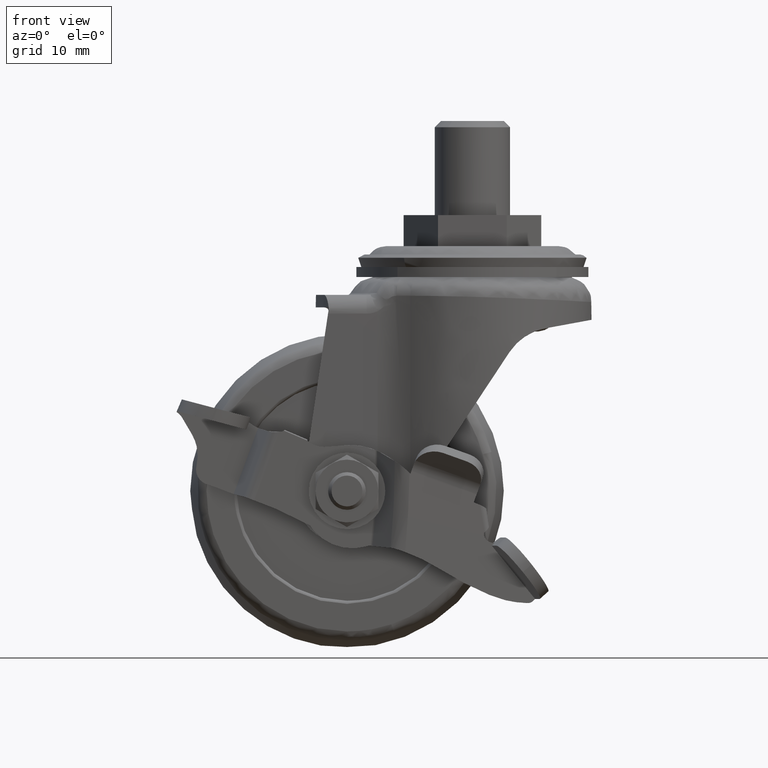
[diagram: clean part render]
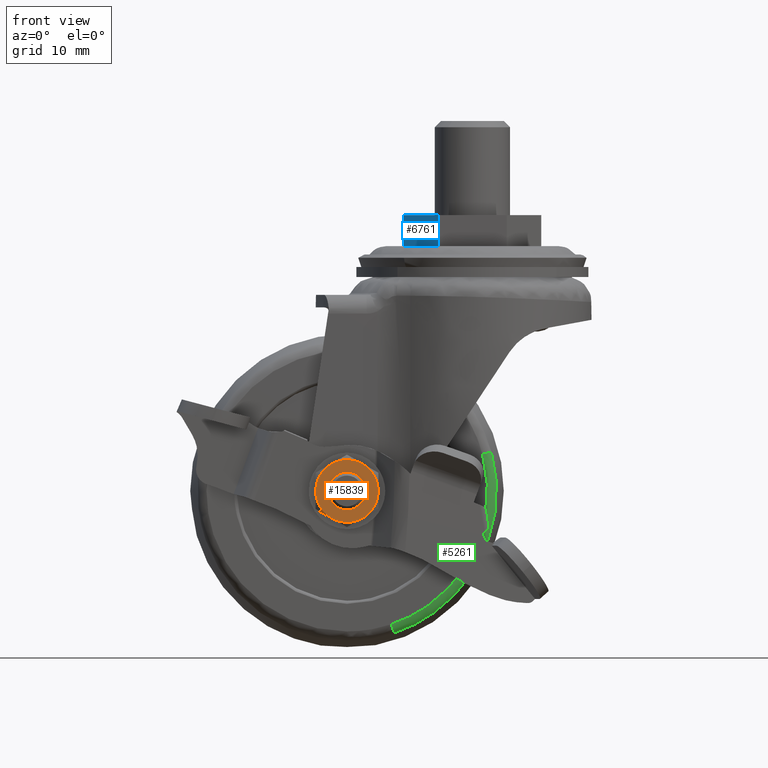
[diagram: same view with three faces highlighted in distinct colors, each labeled with its STEP entity id]
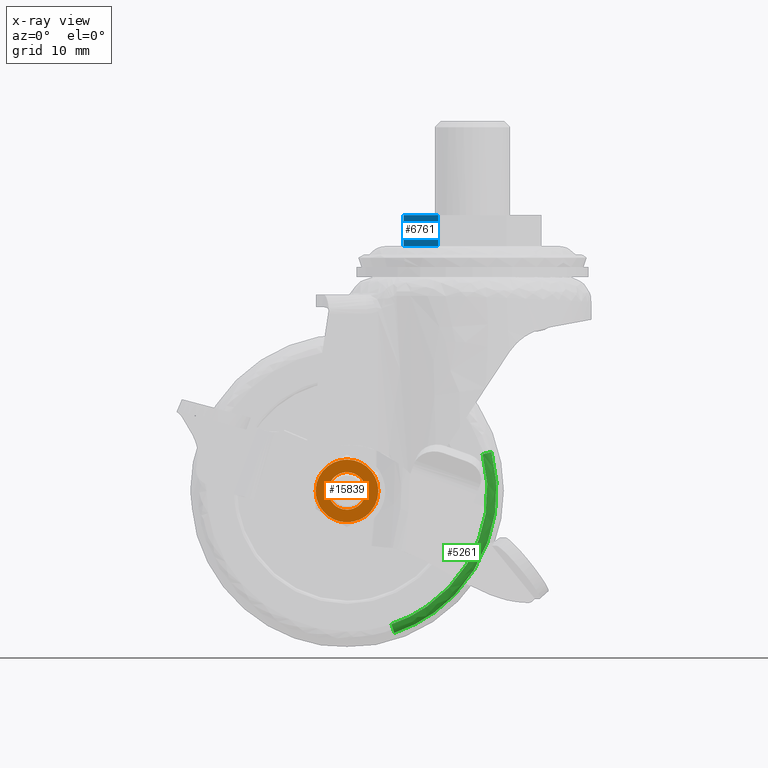
[diagram: x-ray of the same camera — body ghosted, the three highlighted faces saturated]
A machine part, front view with three faces highlighted in distinct colors.
The next image is the same camera in x-ray (body ghosted, the three faces saturated) — at least one of them is partly hidden behind the body in this view.
Their STEP definitions:

[orange] entity #15839 — the highlighted face is a freeform B-spline surface patch.
#14986=CARTESIAN_POINT('',(-22.065178566340482,-22.239999999999998,-41.257308794949999));
#14987=VERTEX_POINT('',#14986);
#14993=CARTESIAN_POINT('',(-20.000114999999901,-22.239999999999998,-42.081186000000031));
#14994=VERTEX_POINT('',#14993);
#14995=CARTESIAN_POINT('',(-20.000114999999901,-22.239999999999998,-42.081186000000031));
#14996=CARTESIAN_POINT('',(-20.189919915054379,-22.239999999999998,-42.081202592994487));
#14997=CARTESIAN_POINT('',(-20.581372305999270,-22.240000000000009,-42.043908622658641));
#14998=CARTESIAN_POINT('',(-21.312519985789820,-22.239999999999970,-41.825347838324660));
#14999=CARTESIAN_POINT('',(-21.798598070608591,-22.239999999999991,-41.510717851837882));
#15000=CARTESIAN_POINT('',(-22.065178566340482,-22.239999999999998,-41.257308794949999));
#15001=B_SPLINE_CURVE_WITH_KNOTS('',3,(#14995,#14996,#14997,#14998,#14999,#15000),.UNSPECIFIED.,.F.,.U.,(4,1,1,4),(0.000000028908446,0.569417021956008,1.174403919337166,2.277668001101973),.UNSPECIFIED.);
#15002=EDGE_CURVE('',#14994,#14987,#15001,.T.);
#15004=CARTESIAN_POINT('',(-17.000115000000140,-22.239999999999998,-39.081187367388473));
#15005=VERTEX_POINT('',#15004);
#15006=CARTESIAN_POINT('',(-17.000115000000140,-22.239999999999998,-39.081187367388473));
#15007=CARTESIAN_POINT('',(-17.000031883774948,-22.239999999999991,-39.338904672299371));
#15008=CARTESIAN_POINT('',(-17.051049593484411,-22.240000000000041,-39.731557771506083));
#15009=CARTESIAN_POINT('',(-17.251463817940870,-22.239999999999920,-40.325981300611232));
#15010=CARTESIAN_POINT('',(-17.558608783160061,-22.240000000000141,-40.876179332247027));
#15011=CARTESIAN_POINT('',(-18.041851260453360,-22.239999999999981,-41.389942531911288));
#15012=CARTESIAN_POINT('',(-18.639321014113928,-22.239999999999981,-41.783902770342578));
#15013=CARTESIAN_POINT('',(-19.288360477812290,-22.240000000000158,-42.025130193503209));
#15014=CARTESIAN_POINT('',(-19.766950590566051,-22.239999999999920,-42.081226699634612));
#15015=CARTESIAN_POINT('',(-20.000114999999901,-22.239999999999998,-42.081186000000031));
#15016=B_SPLINE_CURVE_WITH_KNOTS('',3,(#15006,#15007,#15008,#15009,#15010,#15011,#15012,#15013,#15014,#15015),.UNSPECIFIED.,.F.,.U.,(4,1,1,1,1,1,1,4),(0.000000119885740,0.773127861633734,1.178104634355915,1.877607584180254,2.650709578517064,3.276595385803298,4.012927290368290,4.712417777949388),.UNSPECIFIED.);
#15017=EDGE_CURVE('',#15005,#14994,#15016,.T.);
#15019=CARTESIAN_POINT('',(-20.000114999999901,-22.239999999999998,-36.081185999999882));
#15020=VERTEX_POINT('',#15019);
#15021=CARTESIAN_POINT('',(-20.000114999999901,-22.239999999999998,-36.081185999999882));
#15022=CARTESIAN_POINT('',(-19.779225774279318,-22.240000000000020,-36.081151482247790));
#15023=CARTESIAN_POINT('',(-19.337460210065711,-22.239999999999970,-36.130200893545862));
#15024=CARTESIAN_POINT('',(-18.636864142214112,-22.239999999999981,-36.371083569741486));
#15025=CARTESIAN_POINT('',(-18.079907219168771,-22.240000000000101,-36.743260321783097));
#15026=CARTESIAN_POINT('',(-17.630262519520681,-22.239999999999959,-37.215675138302529));
#15027=CARTESIAN_POINT('',(-17.297392431600439,-22.240000000000119,-37.720387269219131));
#15028=CARTESIAN_POINT('',(-17.056171838044069,-22.239999999999618,-38.369433532534408));
#15029=CARTESIAN_POINT('',(-17.000073957151209,-22.240000000000450,-38.848022738287753));
#15030=CARTESIAN_POINT('',(-17.000115000000140,-22.239999999999998,-39.081187367388473));
#15031=B_SPLINE_CURVE_WITH_KNOTS('',3,(#15021,#15022,#15023,#15024,#15025,#15026,#15027,#15028,#15029,#15030),.UNSPECIFIED.,.F.,.U.,(4,1,1,1,1,1,1,4),(0.000000119435660,0.662667179194615,1.325368415308418,2.208966484818668,2.650710446975306,3.276596458360181,4.012928603772594,4.712419319324531),.UNSPECIFIED.);
#15032=EDGE_CURVE('',#15020,#15005,#15031,.T.);
#15034=CARTESIAN_POINT('',(-22.290782165739820,-22.239999999999998,-37.143959642958812));
#15035=VERTEX_POINT('',#15034);
#15036=CARTESIAN_POINT('',(-22.290782165739820,-22.239999999999998,-37.143959642958812));
#15037=CARTESIAN_POINT('',(-22.141789975624430,-22.239999999999998,-36.967721505112053));
#15038=CARTESIAN_POINT('',(-21.802874971717060,-22.240000000000020,-36.649889595605700));
#15039=CARTESIAN_POINT('',(-21.258180096413611,-22.240000000000009,-36.336105265697888));
#15040=CARTESIAN_POINT('',(-20.651692560695960,-22.239999999999949,-36.131236733077230));
#15041=CARTESIAN_POINT('',(-20.244472642900650,-22.240000000000130,-36.081122939746642));
#15042=CARTESIAN_POINT('',(-20.000114999999901,-22.239999999999998,-36.081185999999882));
#15043=B_SPLINE_CURVE_WITH_KNOTS('',3,(#15036,#15037,#15038,#15039,#15040,#15041,#15042),.UNSPECIFIED.,.F.,.U.,(4,1,1,1,4),(0.000000039433935,0.692332325804051,1.384651935936745,1.873365879324359,2.606424994682187),.UNSPECIFIED.);
#15044=EDGE_CURVE('',#15035,#15020,#15043,.T.);
#15070=CARTESIAN_POINT('',(-23.000114999999671,-22.239999999999998,-39.081184632611389));
#15071=VERTEX_POINT('',#15070);
#15072=CARTESIAN_POINT('',(-23.000114999999671,-22.239999999999998,-39.081184632611389));
#15073=CARTESIAN_POINT('',(-23.000172115502941,-22.240000000000009,-38.839867651535542));
#15074=CARTESIAN_POINT('',(-22.949539592238349,-22.239999999999991,-38.423089942774567));
#15075=CARTESIAN_POINT('',(-22.721827704894789,-22.239999999999998,-37.756183608304269));
#15076=CARTESIAN_POINT('',(-22.475035120766950,-22.240000000000020,-37.361654301026348));
#15077=CARTESIAN_POINT('',(-22.290782165739820,-22.239999999999998,-37.143959642958812));
#15078=B_SPLINE_CURVE_WITH_KNOTS('',3,(#15072,#15073,#15074,#15075,#15076,#15077),.UNSPECIFIED.,.F.,.U.,(4,1,1,4),(0.000000018837691,0.723952191754388,1.250445441148272,2.106025115664856),.UNSPECIFIED.);
#15079=EDGE_CURVE('',#15071,#15035,#15078,.T.);
#15081=CARTESIAN_POINT('',(-22.065178566340482,-22.239999999999998,-41.257308794949999));
#15082=CARTESIAN_POINT('',(-22.304488431396241,-22.239999999999991,-41.030477193878241));
#15083=CARTESIAN_POINT('',(-22.652770429045919,-22.239999999999970,-40.568682997409049));
#15084=CARTESIAN_POINT('',(-22.941766076873900,-22.240000000000030,-39.803973342907149));
#15085=CARTESIAN_POINT('',(-23.000158285708839,-22.239999999999981,-39.322125519106550));
#15086=CARTESIAN_POINT('',(-23.000114999999671,-22.239999999999998,-39.081184632611389));
#15087=B_SPLINE_CURVE_WITH_KNOTS('',3,(#15081,#15082,#15083,#15084,#15085,#15086),.UNSPECIFIED.,.F.,.U.,(4,1,1,4),(0.000000031737788,0.989129454947901,1.711931885952800,2.434751745338046),.UNSPECIFIED.);
#15088=EDGE_CURVE('',#14987,#15071,#15087,.T.);
#15269=CARTESIAN_POINT('',(-22.063342728352051,-22.239999999999998,-43.636193309649450));
#15270=VERTEX_POINT('',#15269);
#15278=CARTESIAN_POINT('',(-22.913556348010800,-22.239999999999998,-43.145279965658503));
#15279=VERTEX_POINT('',#15278);
#15280=CARTESIAN_POINT('',(-22.913556348010800,-22.239999999999998,-43.145279965658503));
#15281=CARTESIAN_POINT('',(-22.063342728352051,-22.239999999999998,-43.636193309649450));
#15282=QUASI_UNIFORM_CURVE('',1,(#15280,#15281),.UNSPECIFIED.,.F.,.U.);
#15283=EDGE_CURVE('',#15279,#15270,#15282,.T.);
#15301=CARTESIAN_POINT('',(-25.000114999999901,-22.239999999999998,-39.151898445875503));
#15302=VERTEX_POINT('',#15301);
#15310=CARTESIAN_POINT('',(-25.000114999999901,-22.239999999999998,-39.010473554124353));
#15311=VERTEX_POINT('',#15310);
#15312=CARTESIAN_POINT('',(-25.000114999999901,-22.239999999999998,-39.010473554124353));
#15313=CARTESIAN_POINT('',(-25.000114999999901,-22.239999999999998,-39.151898445875503));
#15314=QUASI_UNIFORM_CURVE('',1,(#15312,#15313),.UNSPECIFIED.,.F.,.U.);
#15315=EDGE_CURVE('',#15311,#15302,#15314,.T.);
#15397=CARTESIAN_POINT('',(-17.086673651988551,-22.239999999999998,-43.145279965658162));
#15398=VERTEX_POINT('',#15397);
#15406=CARTESIAN_POINT('',(-17.936887271648100,-22.239999999999998,-43.636193309649599));
#15407=VERTEX_POINT('',#15406);
#15408=CARTESIAN_POINT('',(-17.936887271648100,-22.239999999999998,-43.636193309649599));
#15409=CARTESIAN_POINT('',(-17.086673651988551,-22.239999999999998,-43.145279965658162));
#15410=QUASI_UNIFORM_CURVE('',1,(#15408,#15409),.UNSPECIFIED.,.F.,.U.);
#15411=EDGE_CURVE('',#15407,#15398,#15410,.T.);
#15461=CARTESIAN_POINT('',(-15.000115000000100,-22.239999999999998,-39.010473554110249));
#15462=VERTEX_POINT('',#15461);
#15470=CARTESIAN_POINT('',(-15.000115000000100,-22.239999999999998,-39.151898445889600));
#15471=VERTEX_POINT('',#15470);
#15472=CARTESIAN_POINT('',(-15.000115000000100,-22.239999999999998,-39.151898445889600));
#15473=CARTESIAN_POINT('',(-15.000115000000100,-22.239999999999998,-39.010473554110249));
#15474=QUASI_UNIFORM_CURVE('',1,(#15472,#15473),.UNSPECIFIED.,.F.,.U.);
#15475=EDGE_CURVE('',#15471,#15462,#15474,.T.);
#15759=CARTESIAN_POINT('',(-25.499614381653849,-22.239999999999998,-33.581134768342082));
#15760=CARTESIAN_POINT('',(-25.499614381653849,-22.239999999999998,-44.581234012685272));
#15761=CARTESIAN_POINT('',(-14.500615528939180,-22.239999999999998,-33.581134768342082));
#15762=CARTESIAN_POINT('',(-14.500615528939180,-22.239999999999998,-44.581234012685272));
#15763=B_SPLINE_SURFACE_WITH_KNOTS('',1,1,((#15759,#15761),(#15760,#15762)),.UNSPECIFIED.,.F.,.F.,.U.,(2,2),(2,2),(0.0,11.000099244343190),(0.0,10.998998852714671),.UNSPECIFIED.);
#15764=CARTESIAN_POINT('',(-22.913556348010800,-22.239999999999998,-43.145279965658503));
#15765=CARTESIAN_POINT('',(-23.329203512168650,-22.239999999999998,-42.847604164880821));
#15766=CARTESIAN_POINT('',(-23.874251343970680,-22.240000000000041,-42.312942825518952));
#15767=CARTESIAN_POINT('',(-24.439749527978531,-22.239999999999931,-41.428727569046458));
#15768=CARTESIAN_POINT('',(-24.857249616191961,-22.240000000000119,-40.464421113742453));
#15769=CARTESIAN_POINT('',(-24.993127609024580,-22.239999999999942,-39.663095806685313));
#15770=CARTESIAN_POINT('',(-25.000114999999901,-22.239999999999998,-39.151898445875503));
#15771=B_SPLINE_CURVE_WITH_KNOTS('',3,(#15764,#15765,#15766,#15767,#15768,#15769,#15770),.UNSPECIFIED.,.F.,.U.,(4,1,1,1,4),(0.000000034316132,1.533650522302746,2.263971359528568,3.140327612041242,4.673978100027673),.UNSPECIFIED.);
#15772=EDGE_CURVE('',#15279,#15302,#15771,.T.);
#15773=ORIENTED_EDGE('',*,*,#15772,.F.);
#15774=ORIENTED_EDGE('',*,*,#15283,.T.);
#15775=CARTESIAN_POINT('',(-17.936887271648100,-22.239999999999998,-43.636193309649599));
#15776=CARTESIAN_POINT('',(-18.340442951217970,-22.239999999999981,-43.819147223268509));
#15777=CARTESIAN_POINT('',(-19.089548302429421,-22.240000000000080,-44.044394843198383));
#15778=CARTESIAN_POINT('',(-20.134092190227211,-22.239999999999881,-44.106920676818063));
#15779=CARTESIAN_POINT('',(-21.104979476315489,-22.240000000000251,-43.990206481187649));
#15780=CARTESIAN_POINT('',(-21.720306988153979,-22.239999999999771,-43.791663329406241));
#15781=CARTESIAN_POINT('',(-22.063342728352051,-22.239999999999998,-43.636193309649450));
#15782=B_SPLINE_CURVE_WITH_KNOTS('',3,(#15775,#15776,#15777,#15778,#15779,#15780,#15781),.UNSPECIFIED.,.F.,.U.,(4,1,1,1,4),(0.000000030120137,1.329241184308419,2.326157518667383,3.123713749518815,4.253568707115332),.UNSPECIFIED.);
#15783=EDGE_CURVE('',#15407,#15270,#15782,.T.);
#15784=ORIENTED_EDGE('',*,*,#15783,.F.);
#15785=ORIENTED_EDGE('',*,*,#15411,.T.);
#15786=CARTESIAN_POINT('',(-15.000115000000100,-22.239999999999998,-39.151898445889600));
#15787=CARTESIAN_POINT('',(-15.003894260603170,-22.239999999999998,-39.419647237791708));
#15788=CARTESIAN_POINT('',(-15.063756364413591,-22.239999999999991,-40.051805549324449));
#15789=CARTESIAN_POINT('',(-15.324795818345869,-22.239999999999998,-40.945041022109180));
#15790=CARTESIAN_POINT('',(-15.777488994273860,-22.240000000000009,-41.811395813422919));
#15791=CARTESIAN_POINT('',(-16.350195524291269,-22.239999999999981,-42.543149008347591));
#15792=CARTESIAN_POINT('',(-16.829451521057759,-22.240000000000052,-42.960924455735103));
#15793=CARTESIAN_POINT('',(-17.086673651988551,-22.239999999999998,-43.145279965658162));
#15794=B_SPLINE_CURVE_WITH_KNOTS('',3,(#15786,#15787,#15788,#15789,#15790,#15791,#15792,#15793),.UNSPECIFIED.,.F.,.U.,(4,1,1,1,1,4),(0.000000034315781,0.803338579182248,1.898809277543616,2.775168856784399,3.724580784479146,4.673978100013005),.UNSPECIFIED.);
#15795=EDGE_CURVE('',#15471,#15398,#15794,.T.);
#15796=ORIENTED_EDGE('',*,*,#15795,.F.);
#15797=ORIENTED_EDGE('',*,*,#15475,.T.);
#15798=CARTESIAN_POINT('',(-20.000113939331481,-22.239999999999998,-34.080685999999901));
#15799=VERTEX_POINT('',#15798);
#15800=CARTESIAN_POINT('',(-20.000113939331481,-22.239999999999998,-34.080685999999901));
#15801=CARTESIAN_POINT('',(-19.533860319090351,-22.239999999999888,-34.080499262849862));
#15802=CARTESIAN_POINT('',(-18.844755822928949,-22.240000000000190,-34.177805871357258));
#15803=CARTESIAN_POINT('',(-17.946668844177520,-22.239999999999860,-34.502229981286533));
#15804=CARTESIAN_POINT('',(-17.265797379722081,-22.240000000000080,-34.867596570432077));
#15805=CARTESIAN_POINT('',(-16.556810399425991,-22.240000000000169,-35.414086015138061));
#15806=CARTESIAN_POINT('',(-15.975331462911679,-22.239999999999661,-36.069664429954081));
#15807=CARTESIAN_POINT('',(-15.508480865481870,-22.240000000000698,-36.832448385191462));
#15808=CARTESIAN_POINT('',(-15.126146067042381,-22.239999999999689,-37.775689773025917));
#15809=CARTESIAN_POINT('',(-15.006518832324220,-22.239999999999998,-38.544267021258477));
#15810=CARTESIAN_POINT('',(-15.000115000000100,-22.239999999999998,-39.010473554110249));
#15811=B_SPLINE_CURVE_WITH_KNOTS('',3,(#15800,#15801,#15802,#15803,#15804,#15805,#15806,#15807,#15808,#15809,#15810),.UNSPECIFIED.,.F.,.U.,(4,1,1,1,1,1,1,1,4),(0.000000105189140,1.398694323978122,2.067653195316586,2.858242893422033,3.709618495990883,4.743412652260355,5.473186951721814,6.385405457154374,7.784099134834699),.UNSPECIFIED.);
#15812=EDGE_CURVE('',#15799,#15462,#15811,.T.);
#15813=ORIENTED_EDGE('',*,*,#15812,.F.);
#15814=CARTESIAN_POINT('',(-25.000114999999901,-22.239999999999998,-39.010473554124353));
#15815=CARTESIAN_POINT('',(-24.995290076700499,-22.239999999999998,-38.665903216616819));
#15816=CARTESIAN_POINT('',(-24.918762038168861,-22.239999999999998,-38.018267879886892));
#15817=CARTESIAN_POINT('',(-24.656243287553590,-22.240000000000052,-37.204642742718683));
#15818=CARTESIAN_POINT('',(-24.301674273845212,-22.239999999999888,-36.496394268420786));
#15819=CARTESIAN_POINT('',(-23.765646304207369,-22.240000000000069,-35.729251663892249));
#15820=CARTESIAN_POINT('',(-22.921262088093950,-22.240000000000119,-34.955385021976547));
#15821=CARTESIAN_POINT('',(-21.874181863028820,-22.239999999999640,-34.401726332430847));
#15822=CARTESIAN_POINT('',(-20.892023931439219,-22.240000000000190,-34.132580542469128));
#15823=CARTESIAN_POINT('',(-20.283899903844819,-22.239999999999959,-34.080669003285301));
#15824=CARTESIAN_POINT('',(-20.000113939331481,-22.239999999999998,-34.080685999999901));
#15825=B_SPLINE_CURVE_WITH_KNOTS('',3,(#15814,#15815,#15816,#15817,#15818,#15819,#15820,#15821,#15822,#15823,#15824),.UNSPECIFIED.,.F.,.U.,(4,1,1,1,1,1,1,1,4),(0.000000105190887,1.033807798334809,1.946025639525133,2.554163118385219,3.405573954972911,4.743413944964471,5.959703812395704,6.932737989280130,7.784101256224829),.UNSPECIFIED.);
#15826=EDGE_CURVE('',#15311,#15799,#15825,.T.);
#15827=ORIENTED_EDGE('',*,*,#15826,.F.);
#15828=ORIENTED_EDGE('',*,*,#15315,.T.);
#15829=EDGE_LOOP('',(#15773,#15774,#15784,#15785,#15796,#15797,#15813,#15827,#15828));
#15830=FACE_OUTER_BOUND('',#15829,.T.);
#15831=ORIENTED_EDGE('',*,*,#15032,.T.);
#15832=ORIENTED_EDGE('',*,*,#15017,.T.);
#15833=ORIENTED_EDGE('',*,*,#15002,.T.);
#15834=ORIENTED_EDGE('',*,*,#15088,.T.);
#15835=ORIENTED_EDGE('',*,*,#15079,.T.);
#15836=ORIENTED_EDGE('',*,*,#15044,.T.);
#15837=EDGE_LOOP('',(#15831,#15832,#15833,#15834,#15835,#15836));
#15838=FACE_BOUND('',#15837,.T.);
#15839=ADVANCED_FACE('',(#15830,#15838),#15763,.T.);

[blue] entity #6761 — the highlighted face is a freeform B-spline surface patch.
#6726=CARTESIAN_POINT('',(-5.210421800542930,-9.974525070766475,-0.247058017392521));
#6727=CARTESIAN_POINT('',(-11.243184297533251,0.474525240639604,-0.247058017392521));
#6728=CARTESIAN_POINT('',(-5.210421800542930,-9.974525070766475,5.193164796284398));
#6729=CARTESIAN_POINT('',(-11.243184297533251,0.474525240639604,5.193164796284398));
#6730=B_SPLINE_SURFACE_WITH_KNOTS('',1,1,((#6726,#6728),(#6727,#6729)),.UNSPECIFIED.,.F.,.F.,.U.,(2,2),(2,2),(0.0,12.065524263594529),(0.0,5.440222813676919),.UNSPECIFIED.);
#6731=CARTESIAN_POINT('',(-5.484388999999910,-9.500000000000108,4.946107000000090));
#6732=VERTEX_POINT('',#6731);
#6733=CARTESIAN_POINT('',(-10.969216999999899,0.0,4.946107000000090));
#6734=VERTEX_POINT('',#6733);
#6735=CARTESIAN_POINT('',(-5.484388999999910,-9.500000000000108,4.946107000000090));
#6736=CARTESIAN_POINT('',(-10.969216999999899,0.0,4.946107000000090));
#6737=QUASI_UNIFORM_CURVE('',1,(#6735,#6736),.UNSPECIFIED.,.F.,.U.);
#6738=EDGE_CURVE('',#6732,#6734,#6737,.T.);
#6739=ORIENTED_EDGE('',*,*,#6738,.T.);
#6740=CARTESIAN_POINT('',(-10.969216999999899,0.0,0.0));
#6741=VERTEX_POINT('',#6740);
#6742=CARTESIAN_POINT('',(-10.969216999999899,0.0,0.0));
#6743=CARTESIAN_POINT('',(-10.969216999999899,0.0,4.946107000000090));
#6744=QUASI_UNIFORM_CURVE('',1,(#6742,#6743),.UNSPECIFIED.,.F.,.U.);
#6745=EDGE_CURVE('',#6741,#6734,#6744,.T.);
#6746=ORIENTED_EDGE('',*,*,#6745,.F.);
#6747=CARTESIAN_POINT('',(-5.484388999999910,-9.500000000000108,0.0));
#6748=VERTEX_POINT('',#6747);
#6749=CARTESIAN_POINT('',(-5.484388999999910,-9.500000000000108,0.0));
#6750=CARTESIAN_POINT('',(-10.969216999999899,0.0,0.0));
#6751=QUASI_UNIFORM_CURVE('',1,(#6749,#6750),.UNSPECIFIED.,.F.,.U.);
#6752=EDGE_CURVE('',#6748,#6741,#6751,.T.);
#6753=ORIENTED_EDGE('',*,*,#6752,.F.);
#6754=CARTESIAN_POINT('',(-5.484388999999910,-9.500000000000108,0.0));
#6755=CARTESIAN_POINT('',(-5.484388999999910,-9.500000000000108,4.946107000000090));
#6756=QUASI_UNIFORM_CURVE('',1,(#6754,#6755),.UNSPECIFIED.,.F.,.U.);
#6757=EDGE_CURVE('',#6748,#6732,#6756,.T.);
#6758=ORIENTED_EDGE('',*,*,#6757,.T.);
#6759=EDGE_LOOP('',(#6739,#6746,#6753,#6758));
#6760=FACE_OUTER_BOUND('',#6759,.T.);
#6761=ADVANCED_FACE('',(#6760),#6730,.F.);

[green] entity #5261 — the highlighted face is a freeform B-spline surface patch.
#5042=CARTESIAN_POINT('',(-11.928787438220191,-10.0,-61.259000437265762));
#5043=VERTEX_POINT('',#5042);
#5092=CARTESIAN_POINT('',(2.628124092491499,-9.999999999999993,-34.156683204357023));
#5093=VERTEX_POINT('',#5092);
#5110=CARTESIAN_POINT('',(4.028807890449260,-8.880597016130544,-33.778225137958771));
#5111=VERTEX_POINT('',#5110);
#5112=CARTESIAN_POINT('',(2.628124092491499,-9.999999999999993,-34.156683204357023));
#5113=CARTESIAN_POINT('',(2.796644309558406,-10.000127288648921,-34.111149847402793));
#5114=CARTESIAN_POINT('',(3.103857295558816,-9.943792754389390,-34.028142367330467));
#5115=CARTESIAN_POINT('',(3.447937662501152,-9.752365481296517,-33.935173497085039));
#5116=CARTESIAN_POINT('',(3.717430129267338,-9.508133254281420,-33.862357920820472));
#5117=CARTESIAN_POINT('',(3.911094399270656,-9.230770110887031,-33.810030760759680));
#5118=CARTESIAN_POINT('',(4.001157994935354,-8.989845232866852,-33.785696007617659));
#5119=CARTESIAN_POINT('',(4.028807890449260,-8.880597016130544,-33.778225137958771));
#5120=B_SPLINE_CURVE_WITH_KNOTS('',3,(#5112,#5113,#5114,#5115,#5116,#5117,#5118,#5119),.UNSPECIFIED.,.F.,.U.,(4,1,1,1,1,4),(0.000000135568129,0.523661670333702,0.954937711324700,1.201319134988049,1.632590695470745,1.971425156413967),.UNSPECIFIED.);
#5121=EDGE_CURVE('',#5093,#5111,#5120,.T.);
#5181=CARTESIAN_POINT('',(-11.470840483115751,-8.880597015026487,-62.635746775374727));
#5182=VERTEX_POINT('',#5181);
#5191=CARTESIAN_POINT('',(-11.928787438220191,-10.0,-61.259000437265762));
#5192=CARTESIAN_POINT('',(-11.873687639965841,-10.000130252540430,-61.424649416200502));
#5193=CARTESIAN_POINT('',(-11.786218751710500,-9.951032602492422,-61.687611032853283));
#5194=CARTESIAN_POINT('',(-11.671908927763340,-9.775272852843871,-62.031265750517612));
#5195=CARTESIAN_POINT('',(-11.590503805680950,-9.567711356850600,-62.275997596592781));
#5196=CARTESIAN_POINT('',(-11.515912701178490,-9.267697569690249,-62.500244157899139));
#5197=CARTESIAN_POINT('',(-11.483150313208631,-9.029602796314938,-62.598739184698587));
#5198=CARTESIAN_POINT('',(-11.470840483115751,-8.880597015026487,-62.635746775374727));
#5199=B_SPLINE_CURVE_WITH_KNOTS('',3,(#5191,#5192,#5193,#5194,#5195,#5196,#5197,#5198),.UNSPECIFIED.,.F.,.U.,(4,1,1,1,1,4),(0.000000135575169,0.523661700005826,0.831706973756440,1.201319203043379,1.509374266266213,1.971425268096583),.UNSPECIFIED.);
#5200=EDGE_CURVE('',#5043,#5182,#5199,.T.);
#5205=CARTESIAN_POINT('',(2.540825822138313,-9.997271737827630,-34.180270783348433));
#5206=CARTESIAN_POINT('',(8.037178359540881,-9.997271737827630,-54.522423746788199));
#5207=CARTESIAN_POINT('',(-11.957329163308266,-9.997271737827630,-61.173194177506922));
#5208=CARTESIAN_POINT('',(3.802214082417780,-10.076185951478552,-33.839449702241758));
#5209=CARTESIAN_POINT('',(9.620422180154138,-10.076185951478552,-55.372799008326901));
#5210=CARTESIAN_POINT('',(-11.544924254240877,-10.076185951478553,-62.413025433555383));
#5211=CARTESIAN_POINT('',(4.048441715022981,-8.792272955902011,-33.772920172369446));
#5212=CARTESIAN_POINT('',(9.929477203149235,-8.792272955902009,-55.538795390303925));
#5213=CARTESIAN_POINT('',(-11.464421297592196,-8.792272955902012,-62.655045059565779));
#5221=(BOUNDED_SURFACE()B_SPLINE_SURFACE(2,2,((#5205,#5208,#5211),(#5206,#5209,#5212),(#5207,#5210,#5213)),.UNSPECIFIED.,.F.,.F.,.U.)B_SPLINE_SURFACE_WITH_KNOTS((3,3),(3,3),(0.0,37.964603486464760),(0.0,2.249884560251931),.UNSPECIFIED.)GEOMETRIC_REPRESENTATION_ITEM()RATIONAL_B_SPLINE_SURFACE(((0.919596086211114,0.692204708563907,0.917839793199765),(0.661026366820433,0.497572326001561,0.659763903869827),(0.898910508659860,0.676634117958920,0.897193722053370)))REPRESENTATION_ITEM('')SURFACE());
#5222=CARTESIAN_POINT('',(2.628124092491499,-9.999999999999993,-34.156683204357023));
#5223=CARTESIAN_POINT('',(2.950682910072999,-9.999999999999995,-35.350149196624557));
#5224=CARTESIAN_POINT('',(3.357567683942571,-9.999999999999991,-37.572749880707427));
#5225=CARTESIAN_POINT('',(3.442156190589963,-9.999999999999991,-40.359546737156727));
#5226=CARTESIAN_POINT('',(3.254947114062991,-9.999999999999996,-42.915203573378513));
#5227=CARTESIAN_POINT('',(2.749779527915967,-10.000000000000011,-45.747119645767377));
#5228=CARTESIAN_POINT('',(1.676694702716016,-9.999999999999952,-48.846809266939168));
#5229=CARTESIAN_POINT('',(0.112121393491947,-9.999999999999913,-51.822707835034919));
#5230=CARTESIAN_POINT('',(-1.585735655745563,-10.000000000000041,-54.200879218867527));
#5231=CARTESIAN_POINT('',(-3.763529798294686,-10.000000000000011,-56.524454174094643));
#5232=CARTESIAN_POINT('',(-6.038874262882999,-9.999999999999949,-58.359960667716088));
#5233=CARTESIAN_POINT('',(-8.840965564772212,-10.000000000000160,-60.050402626696439));
#5234=CARTESIAN_POINT('',(-10.755669433527331,-9.999999999999613,-60.868873854085429));
#5235=CARTESIAN_POINT('',(-11.928787438220191,-10.0,-61.259000437265762));
#5236=B_SPLINE_CURVE_WITH_KNOTS('',3,(#5222,#5223,#5224,#5225,#5226,#5227,#5228,#5229,#5230,#5231,#5232,#5233,#5234,#5235),.UNSPECIFIED.,.F.,.U.,(4,1,1,1,1,1,1,1,1,1,1,4),(0.000000047470117,3.708858749178368,6.755444078435609,8.344961758864621,11.391542154436159,15.365357048735380,18.146952171871860,21.458454557307260,24.107663186635541,27.684090015832719,30.200836081809001,33.909685785729053),.UNSPECIFIED.);
#5237=EDGE_CURVE('',#5093,#5043,#5236,.T.);
#5238=ORIENTED_EDGE('',*,*,#5237,.T.);
#5239=ORIENTED_EDGE('',*,*,#5200,.T.);
#5240=CARTESIAN_POINT('',(4.028807890449260,-8.880597016130544,-33.778225137958771));
#5241=CARTESIAN_POINT('',(4.445978313887832,-8.880597015985421,-35.321280245305502));
#5242=CARTESIAN_POINT('',(4.799179848721785,-8.880597015799165,-37.465876174979762));
#5243=CARTESIAN_POINT('',(4.884173005315027,-8.880597015559404,-40.569511578296321));
#5244=CARTESIAN_POINT('',(4.722918147650191,-8.880597015389766,-42.965928768737101));
#5245=CARTESIAN_POINT('',(4.252897542864284,-8.880597015230402,-45.512706366227192));
#5246=CARTESIAN_POINT('',(3.469644956725645,-8.880597015083481,-48.176818008028363));
#5247=CARTESIAN_POINT('',(2.505765798564352,-8.880597014980390,-50.430108929586709));
#5248=CARTESIAN_POINT('',(1.195272050548563,-8.880597014894565,-52.769446880670408));
#5249=CARTESIAN_POINT('',(-0.419486603553096,-8.880597014831418,-55.088910252866327));
#5250=CARTESIAN_POINT('',(-2.670027090164373,-8.880597014804559,-57.504329553194601));
#5251=CARTESIAN_POINT('',(-5.169463856903962,-8.880597014826616,-59.508365279442813));
#5252=CARTESIAN_POINT('',(-8.011423871402513,-8.880597014890336,-61.269062701788897));
#5253=CARTESIAN_POINT('',(-10.132503664835831,-8.880597014967494,-62.190733271621589));
#5254=CARTESIAN_POINT('',(-11.470840483115751,-8.880597015026487,-62.635746775374727));
#5255=B_SPLINE_CURVE_WITH_KNOTS('',3,(#5240,#5241,#5242,#5243,#5244,#5245,#5246,#5247,#5248,#5249,#5250,#5251,#5252,#5253,#5254),.UNSPECIFIED.,.F.,.U.,(4,1,1,1,1,1,1,1,1,1,1,1,4),(0.000000044978350,4.795292897624339,6.487741171238866,9.308514972610769,11.988242983485501,14.244869490458621,17.629782912373258,19.322184868977558,22.283996597007899,26.092041577105320,29.194885567380549,31.874628490422879,36.105750044599517),.UNSPECIFIED.);
#5256=EDGE_CURVE('',#5111,#5182,#5255,.T.);
#5257=ORIENTED_EDGE('',*,*,#5256,.F.);
#5258=ORIENTED_EDGE('',*,*,#5121,.F.);
#5259=EDGE_LOOP('',(#5238,#5239,#5257,#5258));
#5260=FACE_OUTER_BOUND('',#5259,.T.);
#5261=ADVANCED_FACE('',(#5260),#5221,.T.);